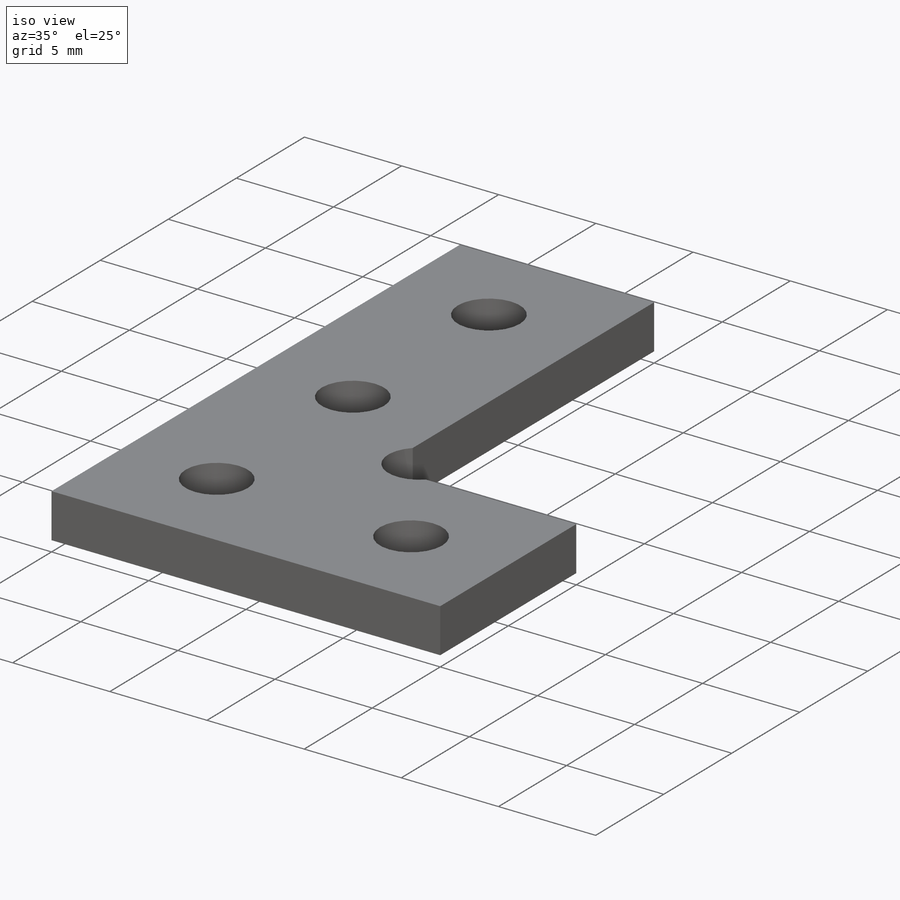
[diagram: iso view]
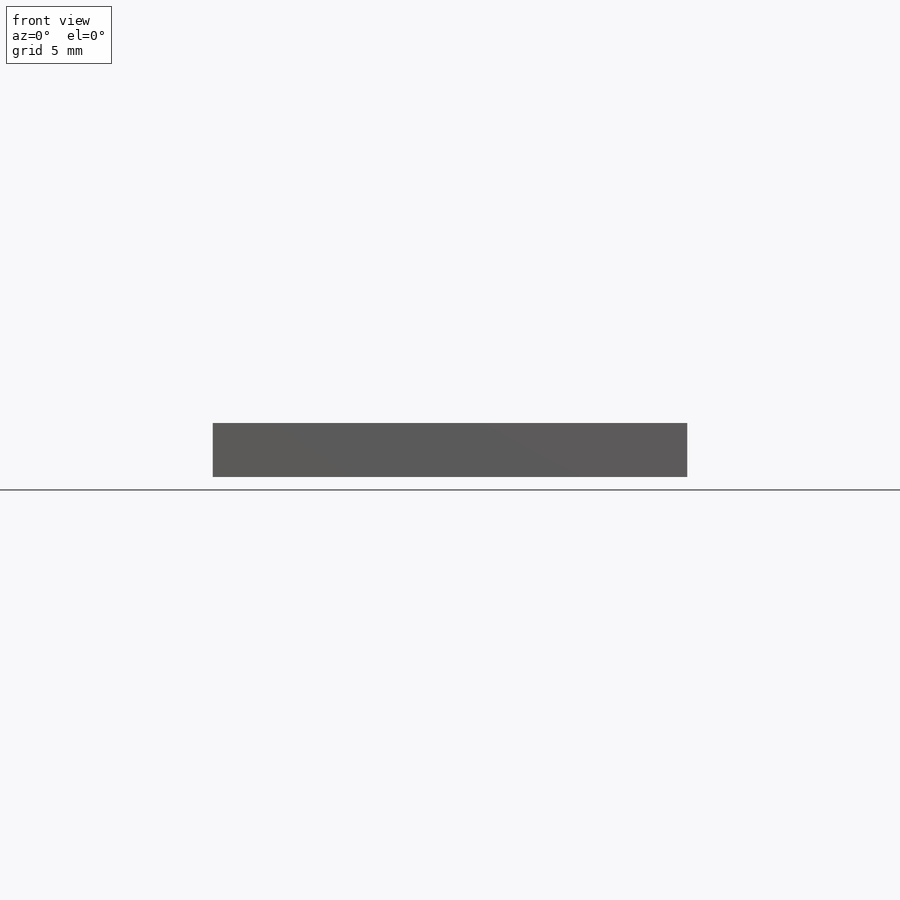
[diagram: front view]
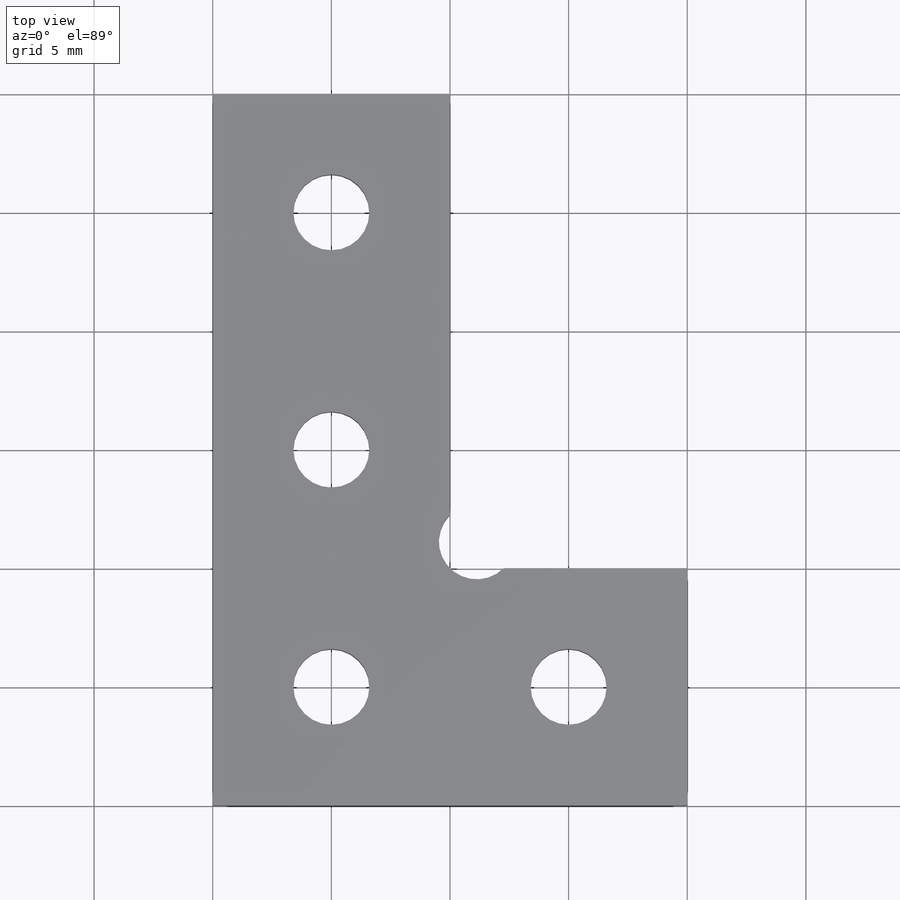
[diagram: top view]
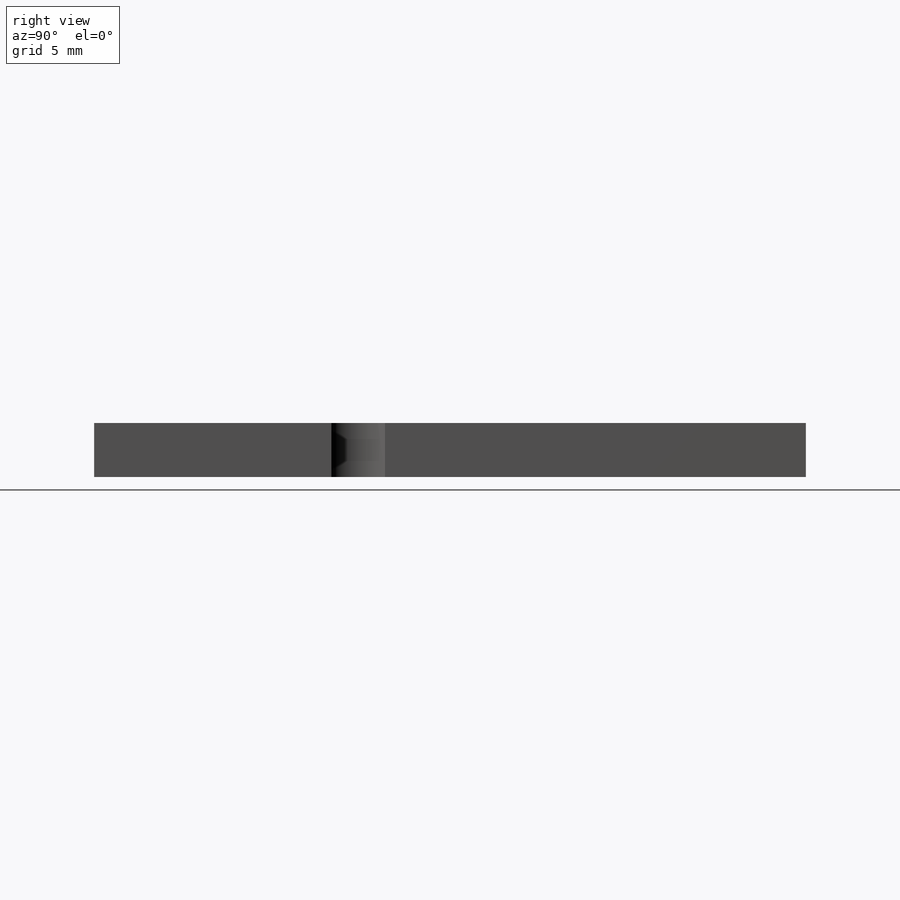
[diagram: right view]
SOLIDWORKS PART (.sldprt)
format: sldprt  version: not decoded by parser v0  size: 186,880 bytes
history: native  units: mm
features: sketch x3, material x1, extrude x1, hole x1 (+12 scaffold rows collapsed)
feature tree (18):
  scaffold x12  (default folders/planes/origin — collapsed)
  material  "6061-T6 (SS)"
  sketch  "Sketch1"  dims[c1.D5=1.6mm c1.D1=10.0mm c1.D2=30.0mm c1.D3=20.0mm c1.D4=10.0mm c1.D6=1.13mm c1.D7=~3.296231mm c2.D7=~92.687961deg c3.D7=1.13mm c3.D4=7.74mm c4.D4=~0.138763deg c5.D4=10.0mm]
  extrude  "Boss-Extrude1"  Depth=2.28mm
  hole  "Ø3.2 (3.2) Diameter Hole1"  Diameter=3.2mm Depth=10mm
  sketch  "Sketch3"  dims[c1.D1=5.0mm c1.D2=15.0mm c1.D3=5.0mm c1.D4=8.85mm c1.D5=18.85mm c2.D4=1.6mm]
  sketch  "Sketch2"  dims[hole-wizard template sketch: 50 standard entries collapsed; hole parameters above]
decode coverage: 5 of 5 modeling features carry decoded parameters
note: ~ marks probable driven/reference dimensions
note: suppression state not decoded; provenance and decode notes live in map.json
